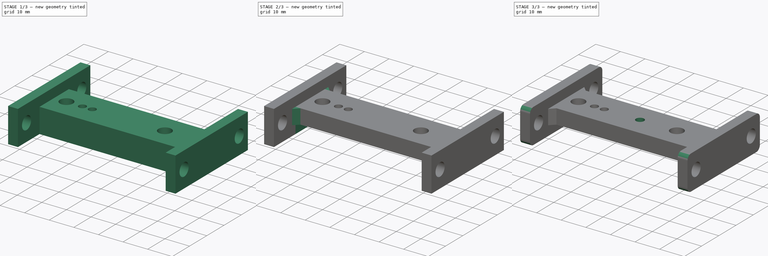
[diagram: build sequence overview — one tinted view per stage of 3, left to right]
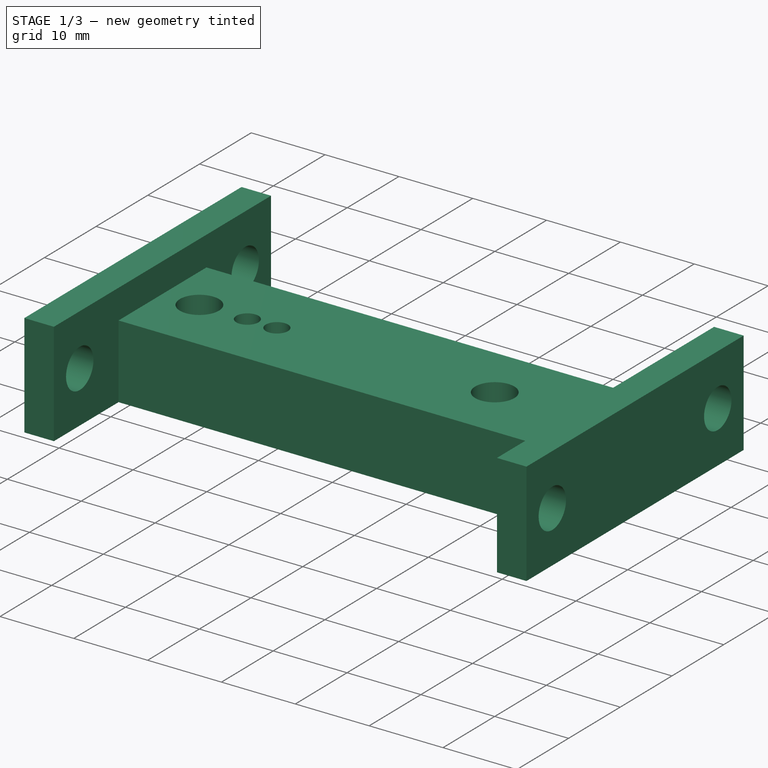
[diagram: stage 1 of 3 — iso view after this stage's code; geometry added in this stage tinted green]
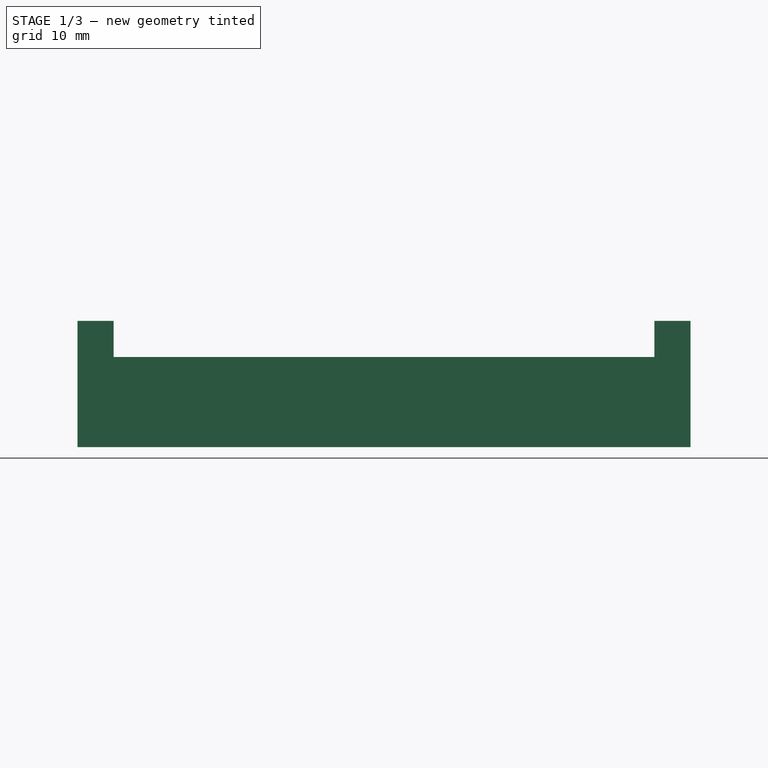
[diagram: stage 1 of 3 — front view after this stage's code; geometry added in this stage tinted green]
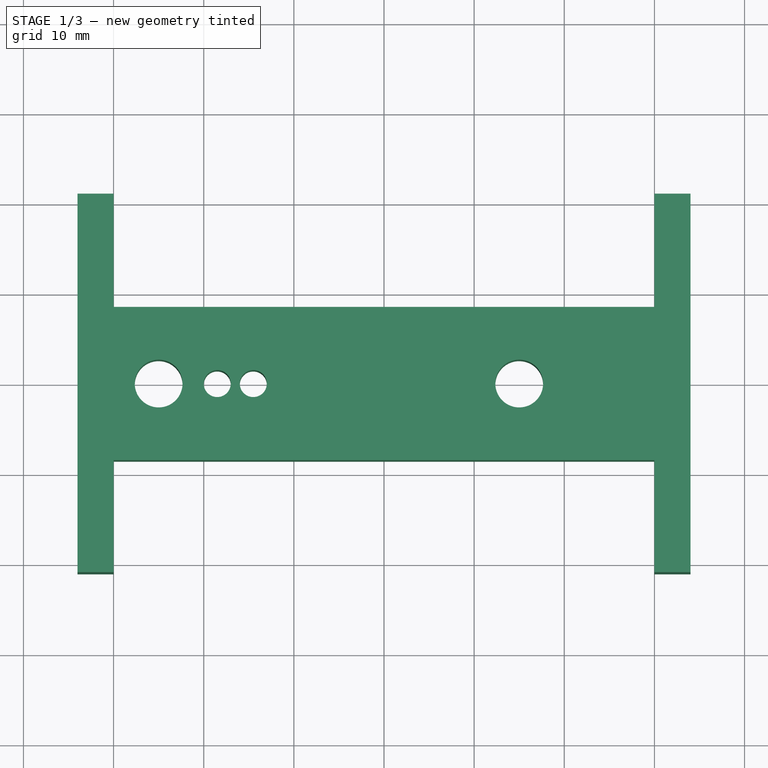
[diagram: stage 1 of 3 — top view after this stage's code; geometry added in this stage tinted green]
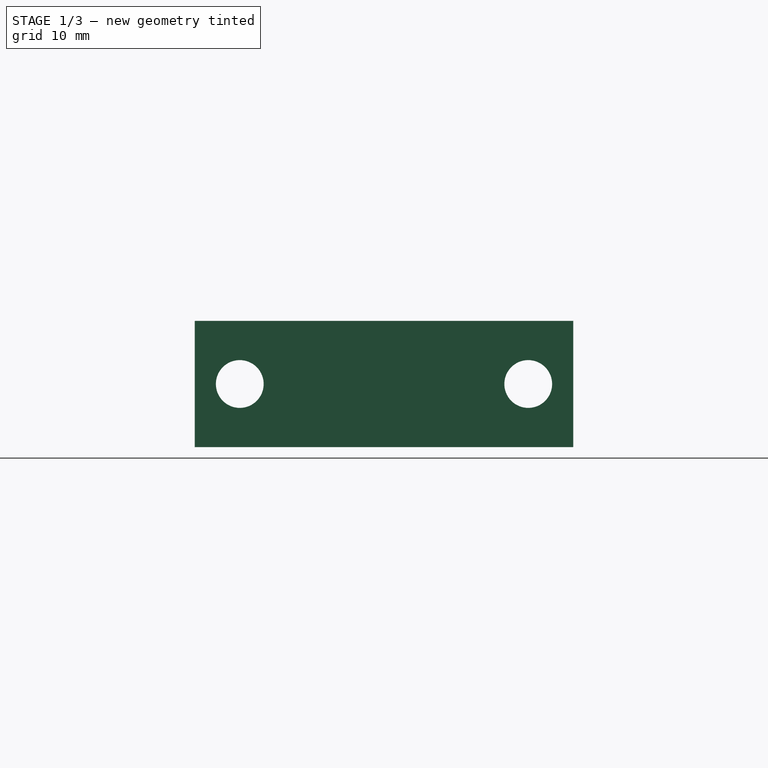
[diagram: stage 1 of 3 — right view after this stage's code; geometry added in this stage tinted green]
FCSTD DOCUMENT  (FreeCAD 0.19R24276 (Git))
Label: Guillotine_part_3_up
License: All rights reserved
LicenseURL: http://en.wikipedia.org/wiki/All_rights_reserved
objects: Sketcher::SketchObject×5, PartDesign::Pocket×4, PartDesign::Fillet×2, PartDesign::Pad×1, PartDesign::Chamfer×1, PartDesign::Body×1
note: 22 computed .brp shape members not serialized (recipe doc carries the construction recipe); baked Part::Feature solids carry a one-line shape summary decoded from their .brp

FEATURE [Sketcher::SketchObject] Sketch001
  FullyConstrained = false
  MapMode = 5
  Support = -> [XY_Plane]
  sketch-geometry (31):
    g0: LineSegment StartX=-25 StartY=0 StartZ=0 EndX=-25 EndY=-12.5 EndZ=0
    g1: LineSegment StartX=15 StartY=0 StartZ=0 EndX=15 EndY=-12.5 EndZ=0
    g2: Circle CenterX=0 CenterY=44 CenterZ=0 NormalX=0 NormalY=0 NormalZ=1 AngleXU=0 Radius=41.5
    g3: Circle CenterX=0 CenterY=-44 CenterZ=0 NormalX=0 NormalY=0 NormalZ=1 AngleXU=0 Radius=41.5
    g4: LineSegment StartX=-34 StartY=8.5 StartZ=0 EndX=34 EndY=8.5 EndZ=0
    g5: LineSegment StartX=34 StartY=8.5 StartZ=0 EndX=34 EndY=-8.5 EndZ=0
    g6: LineSegment StartX=34 StartY=-8.5 StartZ=0 EndX=-34 EndY=-8.5 EndZ=0
    g7: LineSegment StartX=-34 StartY=-8.5 StartZ=0 EndX=-34 EndY=8.5 EndZ=0
    g8: LineSegment StartX=0 StartY=0 StartZ=0 EndX=15 EndY=0 EndZ=0
    g9: LineSegment StartX=0 StartY=0 StartZ=0 EndX=-25 EndY=0 EndZ=0
    g10: Circle CenterX=-14.5 CenterY=0 CenterZ=0 NormalX=0 NormalY=0 NormalZ=1 AngleXU=0 Radius=1.5
    g11: Circle CenterX=-18.5 CenterY=0 CenterZ=0 NormalX=0 NormalY=0 NormalZ=1 AngleXU=0 Radius=1.5
    g12: LineSegment StartX=43.0871 StartY=-15.7664 StartZ=0 EndX=59.0871 EndY=-15.7664 EndZ=0
    g13: LineSegment StartX=51.0871 StartY=-28.6244 StartZ=0 EndX=51.0871 EndY=-15.7664 EndZ=0
    g14: LineSegment StartX=30 StartY=21 StartZ=0 EndX=34 EndY=21 EndZ=0
    g15: LineSegment StartX=34 StartY=21 StartZ=0 EndX=34 EndY=-21 EndZ=0
    g16: LineSegment StartX=34 StartY=-21 StartZ=0 EndX=30 EndY=-21 EndZ=0
    g17: LineSegment StartX=30 StartY=-21 StartZ=0 EndX=30 EndY=21 EndZ=0
    g18: LineSegment StartX=0 StartY=0 StartZ=0 EndX=34 EndY=0 EndZ=0
    g19: LineSegment StartX=-30 StartY=-21 StartZ=0 EndX=-30 EndY=21 EndZ=0
    g20: LineSegment StartX=-30 StartY=21 StartZ=0 EndX=-34 EndY=21 EndZ=0
    g21: LineSegment StartX=-34 StartY=21 StartZ=0 EndX=-34 EndY=-21 EndZ=0
    g22: LineSegment StartX=-34 StartY=-21 StartZ=0 EndX=-30 EndY=-21 EndZ=0
    g23: LineSegment StartX=-30 StartY=21 StartZ=0 EndX=-30 EndY=8.5 EndZ=0
    g24: LineSegment StartX=-30 StartY=8.5 StartZ=0 EndX=30 EndY=8.5 EndZ=0
    g25: LineSegment StartX=30 StartY=21 StartZ=0 EndX=30 EndY=8.5 EndZ=0
    g26: LineSegment StartX=-30 StartY=-8.5 StartZ=0 EndX=30 EndY=-8.5 EndZ=0
    g27: LineSegment StartX=-30 StartY=-21 StartZ=0 EndX=-30 EndY=-8.5 EndZ=0
    g28: LineSegment StartX=30 StartY=-21 StartZ=0 EndX=30 EndY=-8.5 EndZ=0
    g29: Circle CenterX=-25 CenterY=0 CenterZ=0 NormalX=0 NormalY=0 NormalZ=1 AngleXU=0 Radius=2.65
    g30: Circle CenterX=15 CenterY=0 CenterZ=0 NormalX=0 NormalY=0 NormalZ=1 AngleXU=0 Radius=2.65
  constraints (83):
    c: Vertical(g0)
    c: Vertical(g1)
    c: DistanceX(g-1,g1) = 15
    c: DistanceX(g0,g-1) = 25
    c: PointOnObject(g2,g-2)
    c: DistanceY(g3,g2) = 88
    c: Symmetric(g2,g3,g-1)
    c: Diameter(g2) = 83
    c: Equal(g2,g3)
    c: Coincident(g4,g5)
    c: Coincident(g5,g6)
    c: Coincident(g6,g7)
    c: Coincident(g7,g4)
    c: Horizontal(g4)
    c: Horizontal(g6)
    c: Vertical(g5)
    c: Vertical(g7)
    c: Symmetric(g4,g5,g-1)
    c: DistanceY(g5,g5) = 17
    c: Coincident(g8,g-1)
    c: Horizontal(g8)
    c: Coincident(g8,g1)
    c: Coincident(g9,g-1)
    c: Horizontal(g9)
    c: Coincident(g0,g9)
    c: PointOnObject(g10,g8)
    c: PointOnObject(g11,g8)
    c: DistanceX(g11,g10) = 4
    c: Diameter(g10) = 3
    c: Equal(g10,g11)
    c: DistanceX(g0,g11) = 6.5
    c: Horizontal(g12)
    c: DistanceX(g12,g12) = 16
    c: Vertical(g13)
    c: Symmetric(g12,g12,g13)
    c: DistanceX(g-1,g6) = 34
    c: Coincident(g14,g15)
    c: Coincident(g15,g16)
    c: Coincident(g16,g17)
    c: Coincident(g17,g14)
    c: Horizontal(g14)
    c: Horizontal(g16)
    c: Vertical(g15)
    c: Vertical(g17)
    c: Vertical(g14,g4)
    c: Coincident(g18,g-1)
    c: Horizontal(g18)
    c: Symmetric(g14,g15,g18)
    c: DistanceY(g15,g15) = 42
    c: DistanceX(g16,g16) = 4
    c: Coincident(g20,g21)
    c: Coincident(g21,g22)
    c: Coincident(g22,g19)
    c: Coincident(g19,g20)
    c: Horizontal(g20)
    c: Horizontal(g22)
    c: Vertical(g21)
    c: Vertical(g19)
    c: Vertical(g20,g4)
    c: Equal(g20,g14)
    c: Horizontal(g19,g14)
    c: Horizontal(g19,g16)
    c: Coincident(g23,g19)
    c: Vertical(g23)
    c: Horizontal(g24)
    c: PointOnObject(g24,g19)
    c: PointOnObject(g23,g4)
    c: PointOnObject(g24,g17)
    c: Coincident(g25,g14)
    c: Coincident(g25,g24)
    c: Horizontal(g24,g4)
    c: Horizontal(g26)
    c: Coincident(g27,g22)
    c: Coincident(g27,g26)
    c: Vertical(g27)
    c: Equal(g27,g23)
    c: Coincident(g28,g16)
    c: Coincident(g28,g26)
    c: Vertical(g28)
    c: Coincident(g29,g0)
    c: Coincident(g30,g1)
    c: Diameter(g29) = 5.3
    c: Equal(g29,g30)
FEATURE [PartDesign::Pad] Pad
  Direction = (1,1,1)
  Length = 14
  Length2 = 100
  Profile = -> Sketch001
  Type = 0
FEATURE [Sketcher::SketchObject] Sketch
  FullyConstrained = true
  MapMode = 5
  Placement = pos=(-34,0,0) rot=(0.57735,-0.57735,-0.57735;2.0944rad)
  Support = -> [Pad]
  sketch-geometry (3):
    g0: Circle CenterX=-16 CenterY=7 CenterZ=0 NormalX=0 NormalY=0 NormalZ=1 AngleXU=0 Radius=2.65
    g1: Circle CenterX=16 CenterY=7 CenterZ=0 NormalX=0 NormalY=0 NormalZ=1 AngleXU=0 Radius=2.65
    g2: LineSegment StartX=0 StartY=0 StartZ=0 EndX=0 EndY=7 EndZ=0
  constraints (8):
    c: Horizontal(g0,g1)
    c: Diameter(g0) = 5.3
    c: Equal(g0,g1)
    c: Coincident(g2,g-1)
    c: Vertical(g2)
    c: Symmetric(g0,g1,g2)
    c: DistanceY(g-1,g0) = 7
    c: DistanceX(g0,g1) = 32
FEATURE [PartDesign::Pocket] Pocket
  BaseFeature = -> Pad
  Length = 5
  Length2 = 100
  Profile = -> Sketch
  Type = 1
FEATURE [Sketcher::SketchObject] Sketch002
  FullyConstrained = true
  MapMode = 5
  Placement = pos=(0,0,14) rot=(0,0,1;0rad)
  Support = -> [Pocket]
  sketch-geometry (4):
    g0: LineSegment StartX=-30 StartY=8.5 StartZ=0 EndX=30 EndY=8.5 EndZ=0
    g1: LineSegment StartX=30 StartY=8.5 StartZ=0 EndX=30 EndY=-8.5 EndZ=0
    g2: LineSegment StartX=30 StartY=-8.5 StartZ=0 EndX=-30 EndY=-8.5 EndZ=0
    g3: LineSegment StartX=-30 StartY=-8.5 StartZ=0 EndX=-30 EndY=8.5 EndZ=0
  constraints (11):
    c: Coincident(g0,g1)
    c: Coincident(g1,g2)
    c: Coincident(g2,g3)
    c: Coincident(g3,g0)
    c: Horizontal(g0)
    c: Horizontal(g2)
    c: Vertical(g1)
    c: Vertical(g3)
    c: Symmetric(g0,g1,g-1)
    c: DistanceX(g2,g1) = 60
    c: DistanceY(g3,g3) = 17
FEATURE [PartDesign::Pocket] Pocket001
  BaseFeature = -> Pocket
  Length = 4
  Length2 = 100
  Profile = -> Sketch002
  Type = 0
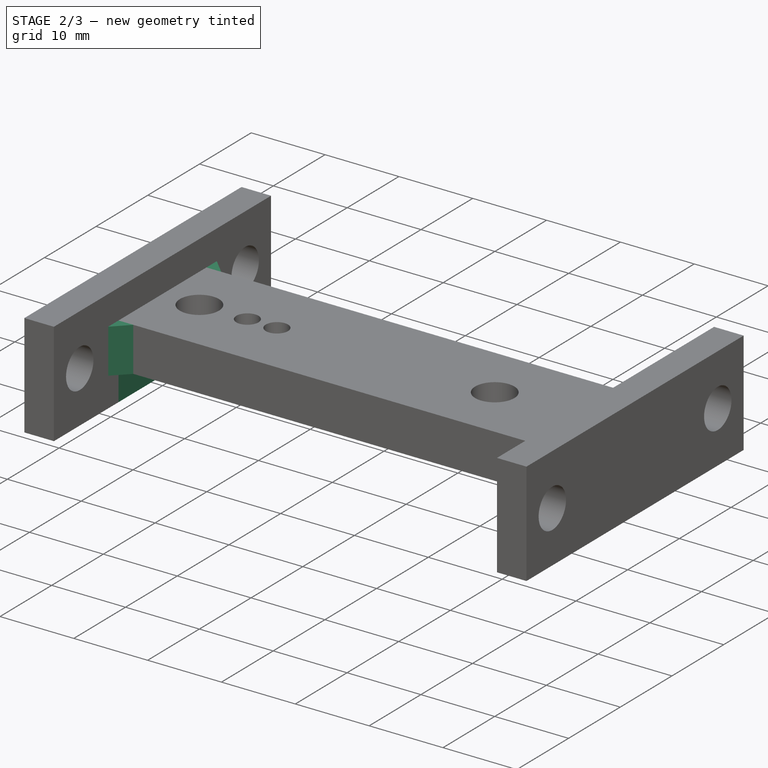
[diagram: stage 2 of 3 — iso view after this stage's code; geometry added in this stage tinted green]
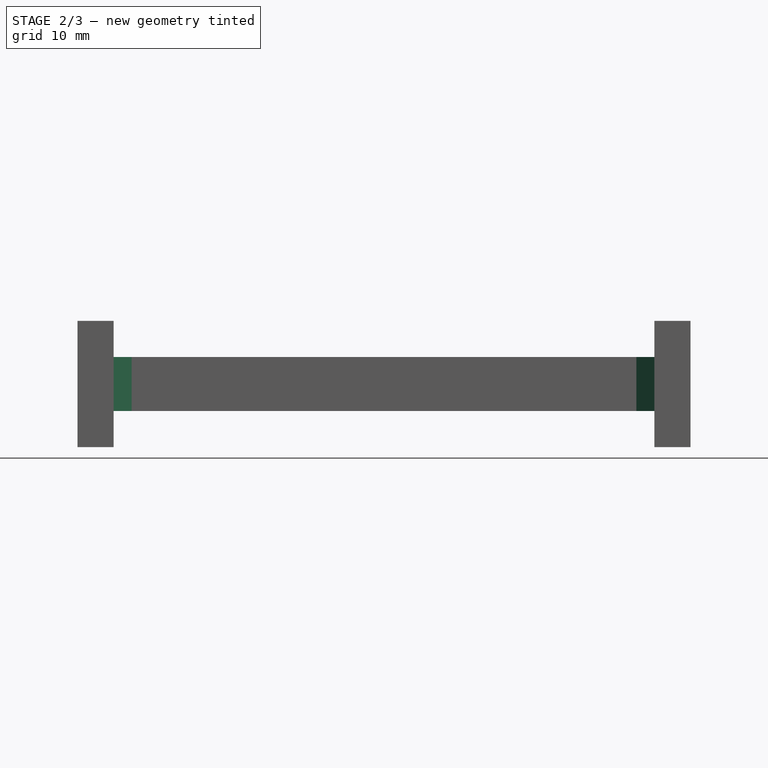
[diagram: stage 2 of 3 — front view after this stage's code; geometry added in this stage tinted green]
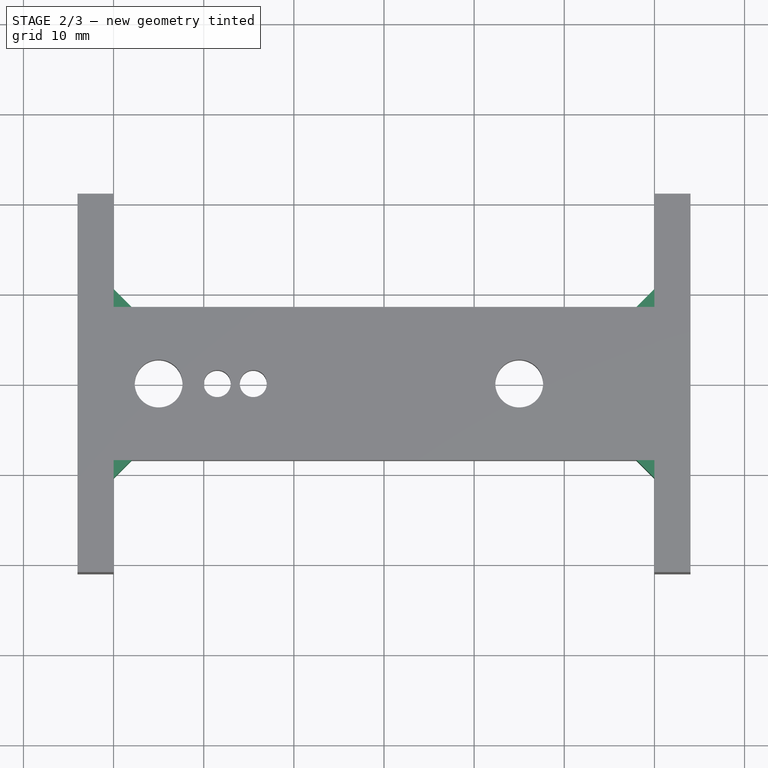
[diagram: stage 2 of 3 — top view after this stage's code; geometry added in this stage tinted green]
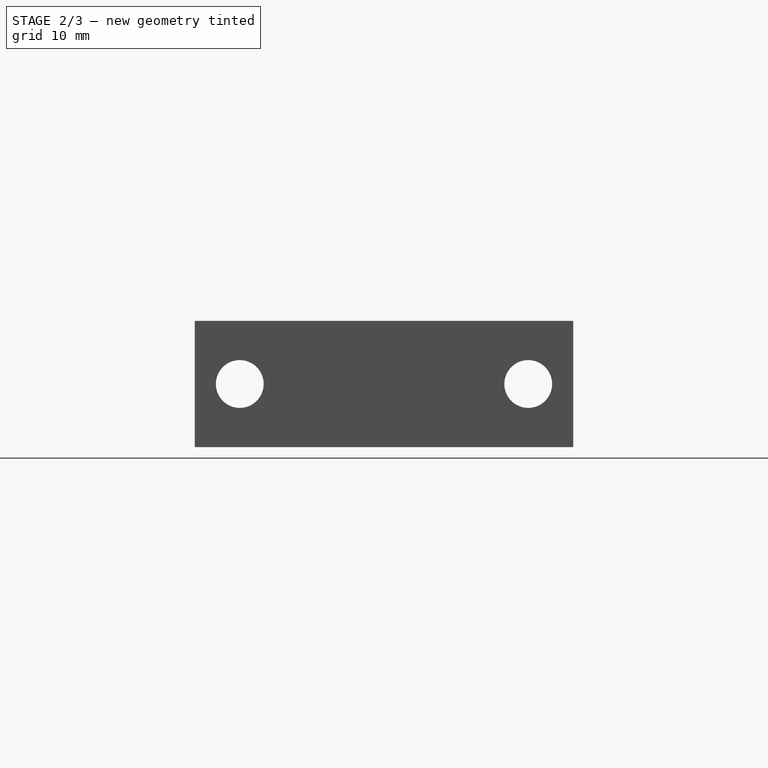
[diagram: stage 2 of 3 — right view after this stage's code; geometry added in this stage tinted green]
FEATURE [Sketcher::SketchObject] Sketch003
  AttachmentOffset = pos=(0,0,-14) rot=(0,0,1;0rad)
  FullyConstrained = true
  MapMode = 5
  Support = -> [Pocket]
  sketch-geometry (4):
    g0: LineSegment StartX=-30 StartY=8.5 StartZ=0 EndX=30 EndY=8.5 EndZ=0
    g1: LineSegment StartX=30 StartY=8.5 StartZ=0 EndX=30 EndY=-8.5 EndZ=0
    g2: LineSegment StartX=30 StartY=-8.5 StartZ=0 EndX=-30 EndY=-8.5 EndZ=0
    g3: LineSegment StartX=-30 StartY=-8.5 StartZ=0 EndX=-30 EndY=8.5 EndZ=0
  constraints (11):
    c: Coincident(g0,g1)
    c: Coincident(g1,g2)
    c: Coincident(g2,g3)
    c: Coincident(g3,g0)
    c: Horizontal(g0)
    c: Horizontal(g2)
    c: Vertical(g1)
    c: Vertical(g3)
    c: Symmetric(g0,g1,g-1)
    c: DistanceX(g2,g1) = 60
    c: DistanceY(g3,g3) = 17
FEATURE [PartDesign::Pocket] Pocket002
  BaseFeature = -> Pocket001
  Length = 4
  Length2 = 100
  Profile = -> Sketch003
  Reversed = true
  Type = 0
FEATURE [PartDesign::Chamfer] Chamfer
  Angle = 45
  Base = -> Pocket002 [Edge5,Edge22,Edge52,Edge31]
  BaseFeature = -> Pocket002
  ChamferType = 0
  FlipDirection = false
  Size = 2
  Size2 = 1
  SupportTransform = false
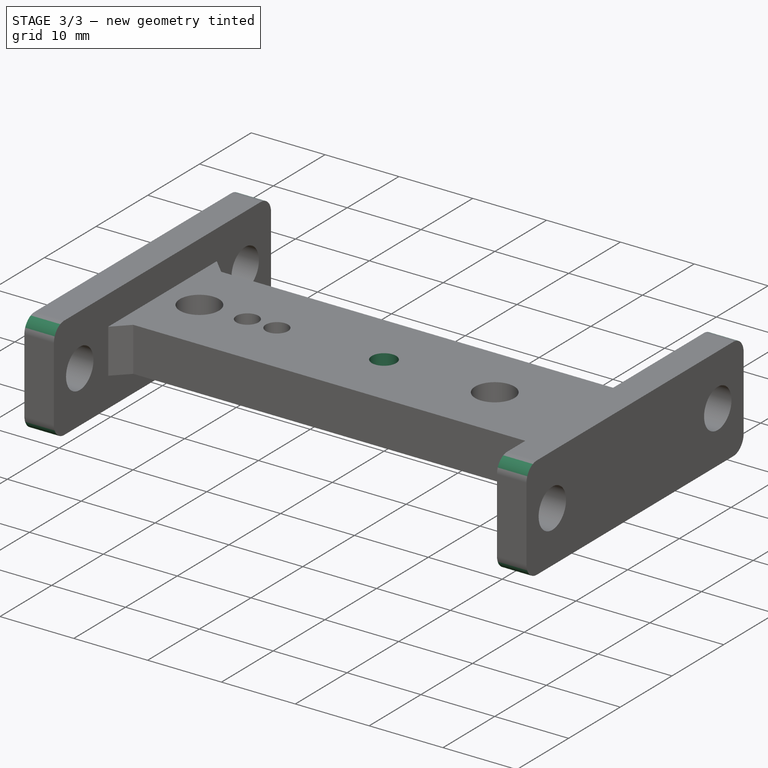
[diagram: stage 3 of 3 — iso view after this stage's code; geometry added in this stage tinted green]
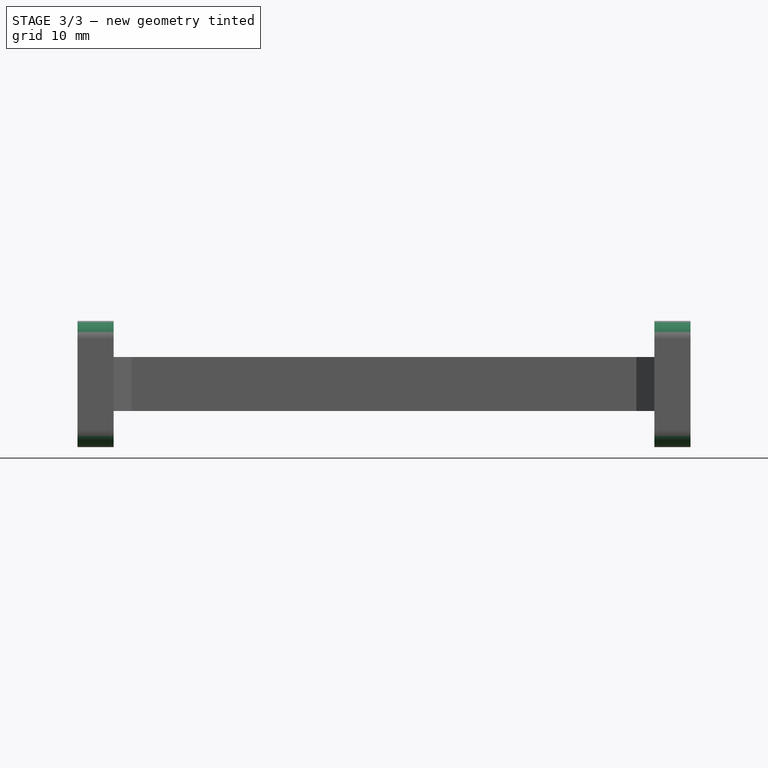
[diagram: stage 3 of 3 — front view after this stage's code; geometry added in this stage tinted green]
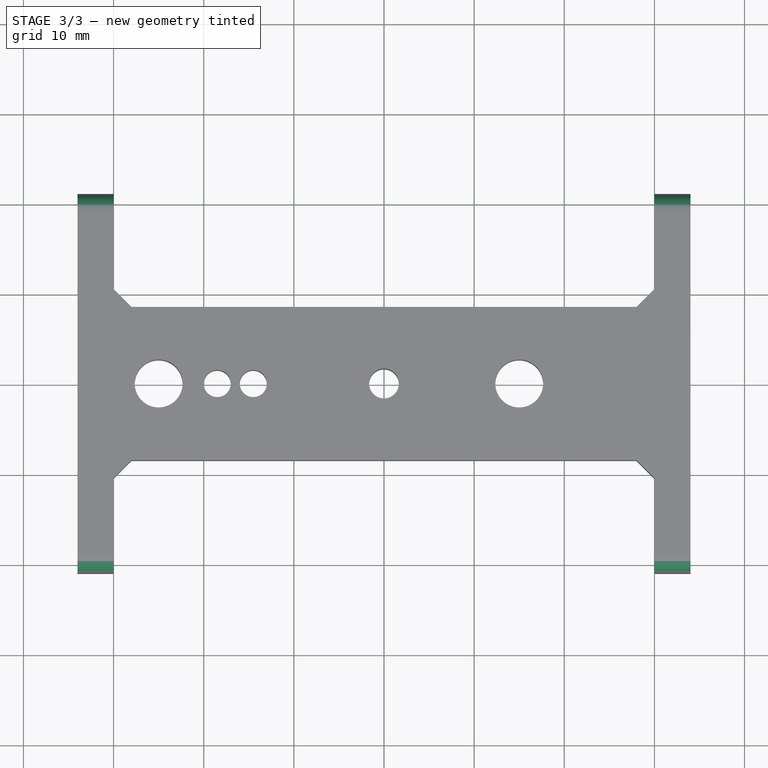
[diagram: stage 3 of 3 — top view after this stage's code; geometry added in this stage tinted green]
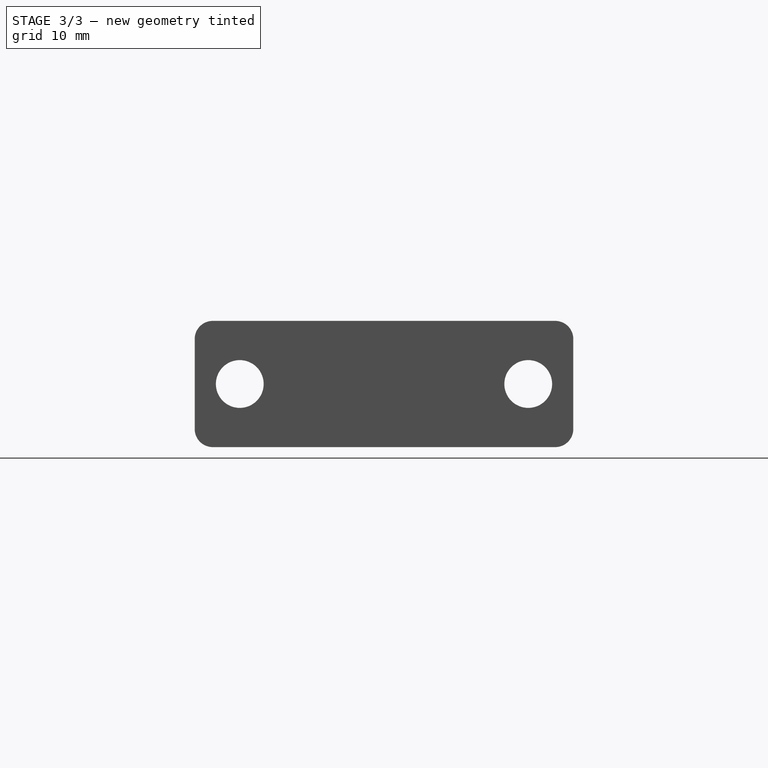
[diagram: stage 3 of 3 — right view after this stage's code; geometry added in this stage tinted green]
FEATURE [PartDesign::Fillet] Fillet
  Base = -> Chamfer [Edge89,Edge84,Edge87,Edge86]
  BaseFeature = -> Chamfer
  Radius = 2
  SupportTransform = false
FEATURE [PartDesign::Fillet] Fillet001
  Base = -> Fillet [Edge102,Edge97,Edge101,Edge99]
  BaseFeature = -> Fillet
  Radius = 2
  SupportTransform = false
FEATURE [Sketcher::SketchObject] Sketch004
  FullyConstrained = true
  MapMode = 5
  Placement = pos=(0,0,4) rot=(1,0,0;3.14159rad)
  Support = -> [Fillet001]
  sketch-geometry (1):
    g0: Circle CenterX=0 CenterY=0 CenterZ=0 NormalX=0 NormalY=0 NormalZ=1 AngleXU=0 Radius=1.65
  constraints (2):
    c: Coincident(g0,g-1)
    c: Diameter(g0) = 3.3
FEATURE [PartDesign::Pocket] Pocket003
  BaseFeature = -> Fillet001
  Length = 5
  Length2 = 100
  Profile = -> Sketch004
  Type = 1
FEATURE [PartDesign::Body] Body
  Group = -> [Sketch001,Pad,Sketch,Pocket,Sketch002,Pocket001,Sketch003,Pocket002,Chamfer,Fillet,Fillet001,Sketch004,Pocket003]
  Origin = -> Origin
  Tip = -> Pocket003
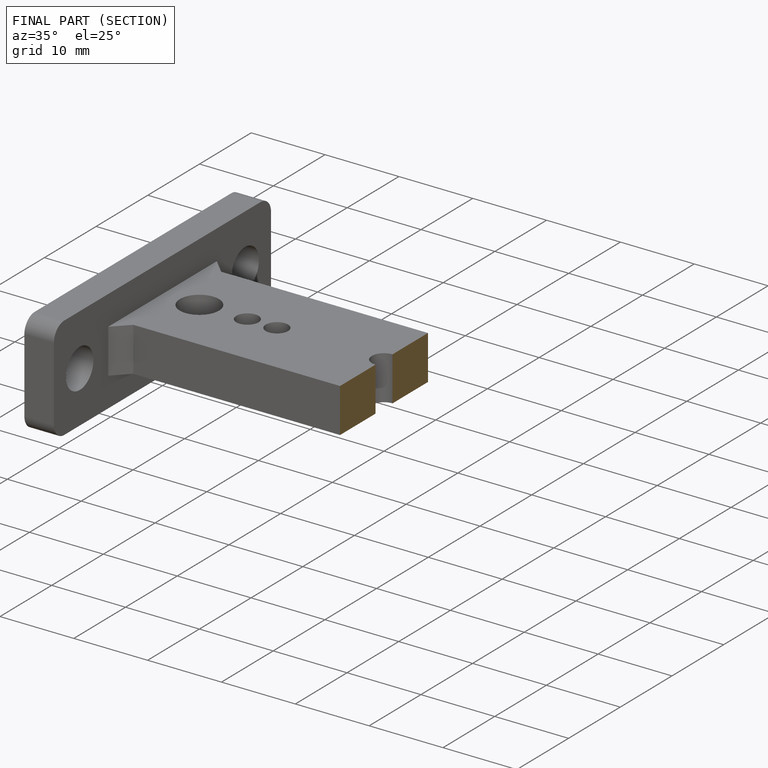
[diagram: finished part — half-section view (interior)]
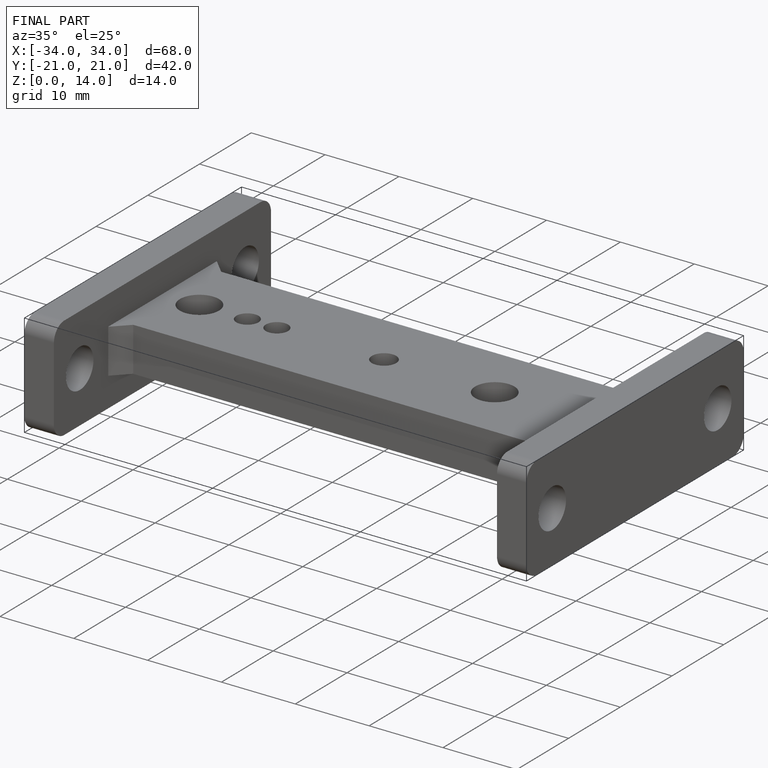
[diagram: finished part — iso view with bounding-box wireframe]
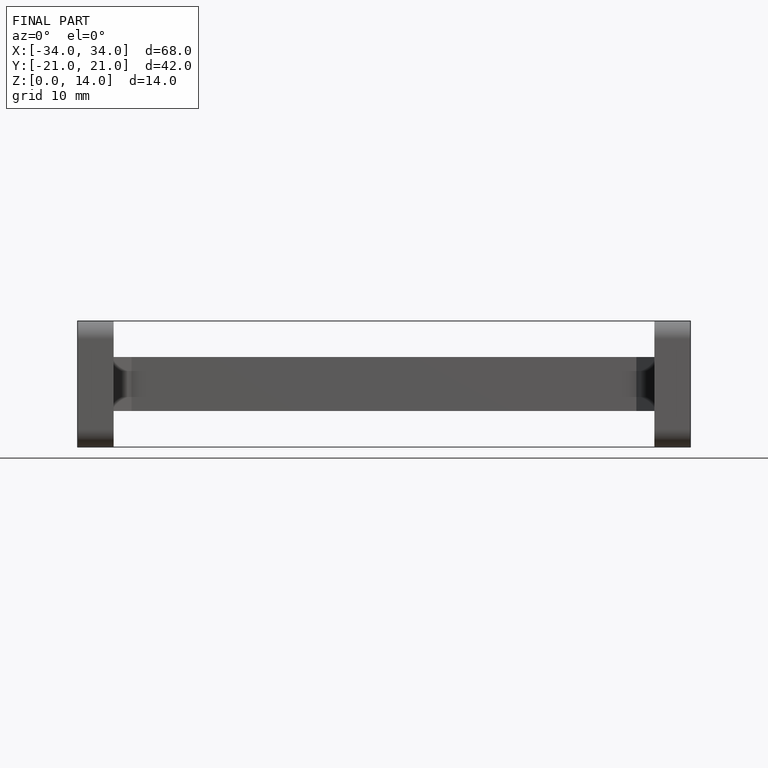
[diagram: finished part — front view with bounding-box wireframe]
